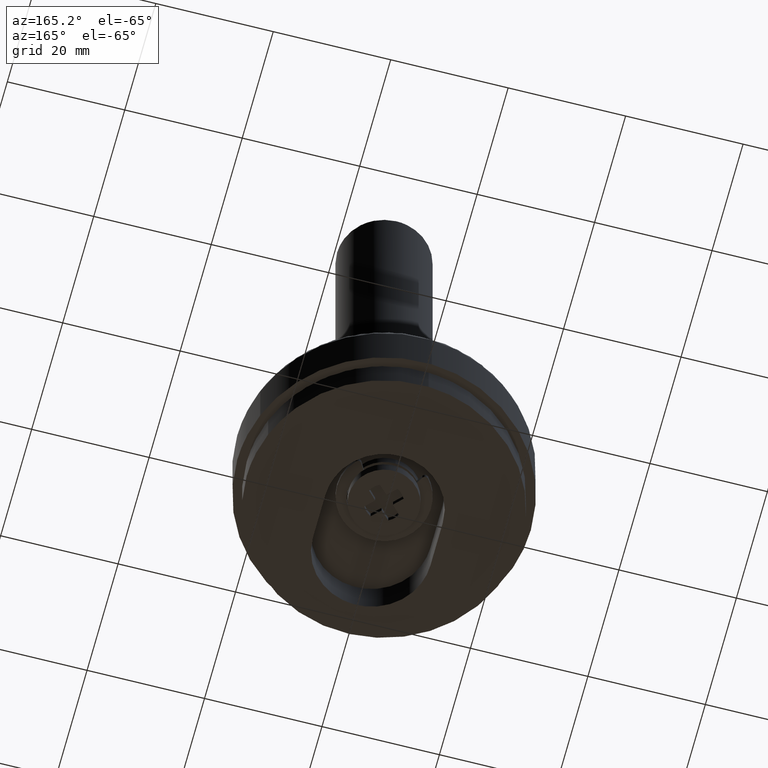
[diagram: clean part render]
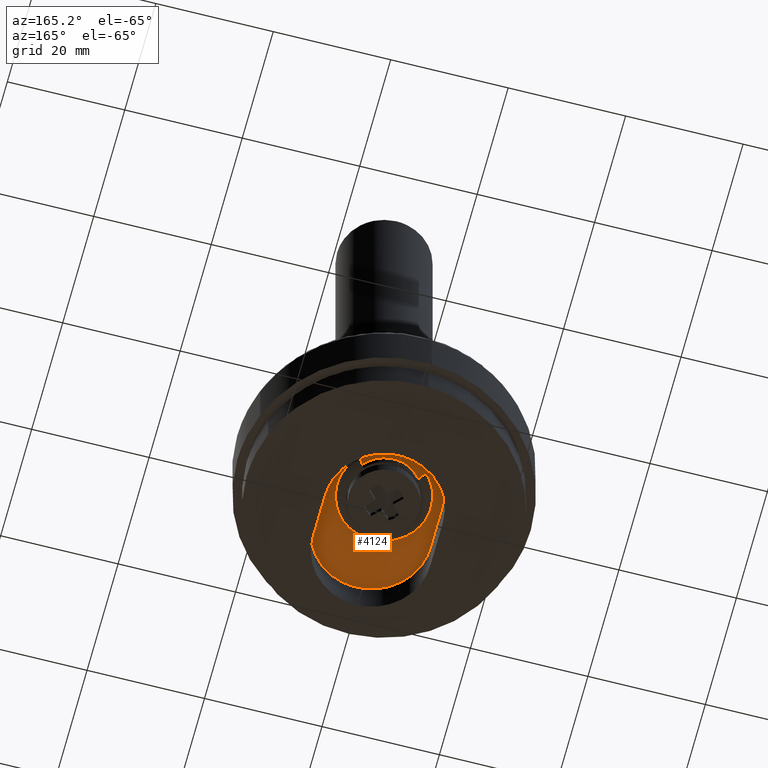
[diagram: same view with one face highlighted and labeled with its STEP entity id]
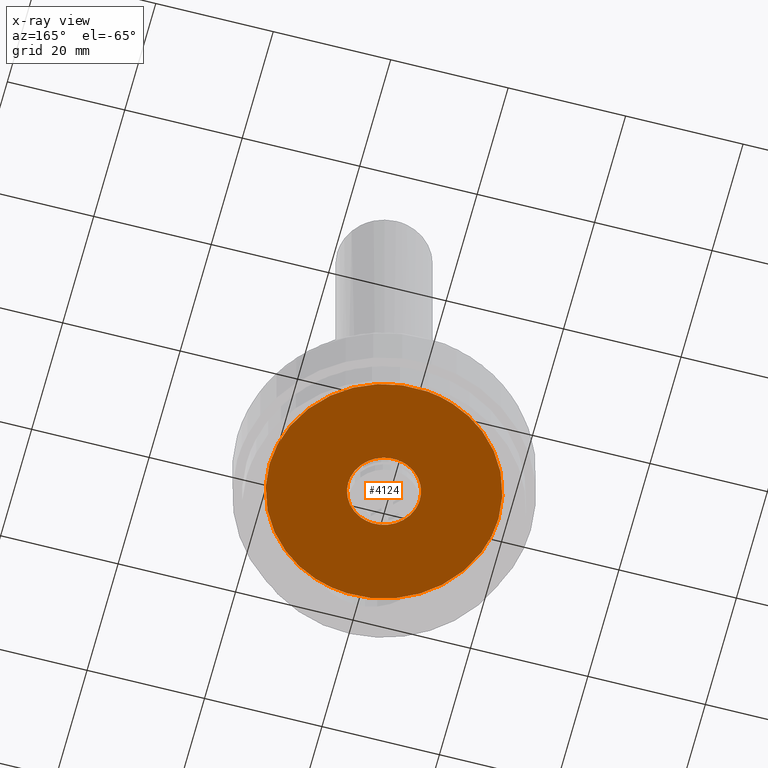
[diagram: x-ray of the same camera — body ghosted, the highlighted face saturated]
A machine part, auxiliary view. The second image highlights one B-rep face of the part: STEP entity #4124.
The next image is the same camera in x-ray: the body ghosted, the highlighted face saturated — about 0% of this face is hidden behind the body in this view.
In plain terms, the highlighted face is a freeform B-spline surface patch.
Its self-contained STEP definition (entity closure, byte-faithful):
#3416=CARTESIAN_POINT('',(-2.301647185523737,19.363688187763952,6.899999999999213));
#3417=VERTEX_POINT('',#3416);
#3418=CARTESIAN_POINT('',(19.500000000000000,0.0,6.900000000000000));
#3419=VERTEX_POINT('',#3418);
#3420=CARTESIAN_POINT('',(-2.301647185523736,19.363688187763941,6.899999999999213));
#3421=CARTESIAN_POINT('',(-1.154860030290596,19.500000000000004,6.900000000000000));
#3422=CARTESIAN_POINT('',(0.0,19.500000000000000,6.900000000000000));
#3423=CARTESIAN_POINT('',(19.500000000000004,19.500000000000004,6.900000000000000));
#3424=CARTESIAN_POINT('',(19.500000000000000,0.0,6.900000000000000));
#3432=(BOUNDED_CURVE()B_SPLINE_CURVE(2,(#3420,#3421,#3422,#3423,#3424),.UNSPECIFIED.,.F.,.U.)B_SPLINE_CURVE_WITH_KNOTS((3,2,3),(0.229562651478887,0.250000000000000,0.500000000000000),.UNSPECIFIED.)CURVE()GEOMETRIC_REPRESENTATION_ITEM()RATIONAL_B_SPLINE_CURVE((0.956027103003421,0.976056156830555,1.0,0.707106781186548,1.0))REPRESENTATION_ITEM(''));
#3433=EDGE_CURVE('',#3417,#3419,#3432,.T.);
#3474=CARTESIAN_POINT('',(1.190421647367187,-19.463630090526760,6.899999999999193));
#3475=VERTEX_POINT('',#3474);
#3481=CARTESIAN_POINT('',(19.500000000000000,0.0,6.900000000000000));
#3482=CARTESIAN_POINT('',(19.500000000000000,-18.343791790915940,6.900000000000000));
#3483=CARTESIAN_POINT('',(1.190421647367187,-19.463630090526760,6.899999999999194));
#3491=(BOUNDED_CURVE()B_SPLINE_CURVE(2,(#3481,#3482,#3483),.UNSPECIFIED.,.F.,.U.)B_SPLINE_CURVE_WITH_KNOTS((3,3),(0.500000000000000,0.739333182748338),.UNSPECIFIED.)CURVE()GEOMETRIC_REPRESENTATION_ITEM()RATIONAL_B_SPLINE_CURVE((1.0,0.719603734943885,0.976072514260782))REPRESENTATION_ITEM(''));
#3492=EDGE_CURVE('',#3419,#3475,#3491,.T.);
#3515=CARTESIAN_POINT('',(-19.500000000000000,0.0,6.900000000000000));
#3516=VERTEX_POINT('',#3515);
#3517=CARTESIAN_POINT('',(-19.500000000000000,0.0,6.900000000000000));
#3518=CARTESIAN_POINT('',(-19.499999999999996,17.319421622064628,6.900000000000000));
#3519=CARTESIAN_POINT('',(-2.301647185523736,19.363688187763941,6.899999999999213));
#3527=(BOUNDED_CURVE()B_SPLINE_CURVE(2,(#3517,#3518,#3519),.UNSPECIFIED.,.F.,.U.)B_SPLINE_CURVE_WITH_KNOTS((3,3),(0.0,0.229562651478887),.UNSPECIFIED.)CURVE()GEOMETRIC_REPRESENTATION_ITEM()RATIONAL_B_SPLINE_CURVE((1.0,0.731050624355992,0.956027103003421))REPRESENTATION_ITEM(''));
#3528=EDGE_CURVE('',#3516,#3417,#3527,.T.);
#3530=CARTESIAN_POINT('',(1.190421647367187,-19.463630090526760,6.899999999999194));
#3531=CARTESIAN_POINT('',(0.595766412670918,-19.500000000000004,6.900000000000000));
#3532=CARTESIAN_POINT('',(0.0,-19.500000000000000,6.900000000000000));
#3533=CARTESIAN_POINT('',(-19.500000000000004,-19.500000000000004,6.900000000000000));
#3534=CARTESIAN_POINT('',(-19.500000000000000,0.0,6.900000000000000));
#3542=(BOUNDED_CURVE()B_SPLINE_CURVE(2,(#3530,#3531,#3532,#3533,#3534),.UNSPECIFIED.,.F.,.U.)B_SPLINE_CURVE_WITH_KNOTS((3,2,3),(0.739333182748338,0.750000000000000,1.0),.UNSPECIFIED.)CURVE()GEOMETRIC_REPRESENTATION_ITEM()RATIONAL_B_SPLINE_CURVE((0.976072514260782,0.987503046242663,1.0,0.707106781186548,1.0))REPRESENTATION_ITEM(''));
#3543=EDGE_CURVE('',#3475,#3516,#3542,.T.);
#3803=CARTESIAN_POINT('',(-0.720008831480611,6.057358110809522,6.900000000000000));
#3804=VERTEX_POINT('',#3803);
#3805=CARTESIAN_POINT('',(6.100000000000001,0.0,6.900000000000000));
#3806=VERTEX_POINT('',#3805);
#3807=CARTESIAN_POINT('',(-0.720008831480611,6.057358110809523,6.900000000000001));
#3808=CARTESIAN_POINT('',(-0.361267129951822,6.100000000000001,6.900000000000000));
#3809=CARTESIAN_POINT('',(0.0,6.100000000000001,6.900000000000000));
#3810=CARTESIAN_POINT('',(6.100000000000001,6.100000000000001,6.900000000000000));
#3811=CARTESIAN_POINT('',(6.100000000000001,0.0,6.900000000000000));
#3819=(BOUNDED_CURVE()B_SPLINE_CURVE(2,(#3807,#3808,#3809,#3810,#3811),.UNSPECIFIED.,.F.,.U.)B_SPLINE_CURVE_WITH_KNOTS((3,2,3),(0.229562473511494,0.250000000000000,0.500000000000000),.UNSPECIFIED.)CURVE()GEOMETRIC_REPRESENTATION_ITEM()RATIONAL_B_SPLINE_CURVE((0.956026754179750,0.976055948328785,1.0,0.707106781186547,1.0))REPRESENTATION_ITEM(''));
#3820=EDGE_CURVE('',#3804,#3806,#3819,.T.);
#3822=CARTESIAN_POINT('',(0.372396091280524,-6.088622270366177,6.900000000000000));
#3823=VERTEX_POINT('',#3822);
#3824=CARTESIAN_POINT('',(6.100000000000001,0.0,6.900000000000000));
#3825=CARTESIAN_POINT('',(6.100000000000001,-5.738307007902087,6.900000000000000));
#3826=CARTESIAN_POINT('',(0.372396091280524,-6.088622270366177,6.900000000000000));
#3834=(BOUNDED_CURVE()B_SPLINE_CURVE(2,(#3824,#3825,#3826),.UNSPECIFIED.,.F.,.U.)B_SPLINE_CURVE_WITH_KNOTS((3,3),(0.500000000000000,0.739332962235286),.UNSPECIFIED.)CURVE()GEOMETRIC_REPRESENTATION_ITEM()RATIONAL_B_SPLINE_CURVE((1.0,0.719603993290995,0.976072041658880))REPRESENTATION_ITEM(''));
#3835=EDGE_CURVE('',#3806,#3823,#3834,.T.);
#3902=CARTESIAN_POINT('',(-6.100000000000001,0.0,6.900000000000000));
#3903=VERTEX_POINT('',#3902);
#3904=CARTESIAN_POINT('',(-6.100000000000001,0.0,6.900000000000000));
#3905=CARTESIAN_POINT('',(-6.100000000000001,5.417864608169345,6.900000000000000));
#3906=CARTESIAN_POINT('',(-0.720008831480611,6.057358110809522,6.900000000000000));
#3914=(BOUNDED_CURVE()B_SPLINE_CURVE(2,(#3904,#3905,#3906),.UNSPECIFIED.,.F.,.U.)B_SPLINE_CURVE_WITH_KNOTS((3,3),(0.0,0.229562473511494),.UNSPECIFIED.)CURVE()GEOMETRIC_REPRESENTATION_ITEM()RATIONAL_B_SPLINE_CURVE((1.0,0.731050832857763,0.956026754179750))REPRESENTATION_ITEM(''));
#3915=EDGE_CURVE('',#3903,#3804,#3914,.T.);
#3949=CARTESIAN_POINT('',(0.372396091280524,-6.088622270366177,6.900000000000000));
#3950=CARTESIAN_POINT('',(0.186371856239619,-6.100000000000001,6.900000000000000));
#3951=CARTESIAN_POINT('',(0.0,-6.100000000000001,6.900000000000000));
#3952=CARTESIAN_POINT('',(-6.100000000000001,-6.100000000000001,6.900000000000000));
#3953=CARTESIAN_POINT('',(-6.100000000000001,0.0,6.900000000000000));
#3961=(BOUNDED_CURVE()B_SPLINE_CURVE(2,(#3949,#3950,#3951,#3952,#3953),.UNSPECIFIED.,.F.,.U.)B_SPLINE_CURVE_WITH_KNOTS((3,2,3),(0.739332962235286,0.750000000000000,1.0),.UNSPECIFIED.)CURVE()GEOMETRIC_REPRESENTATION_ITEM()RATIONAL_B_SPLINE_CURVE((0.976072041658881,0.987502787895553,1.0,0.707106781186547,1.0))REPRESENTATION_ITEM(''));
#3962=EDGE_CURVE('',#3823,#3903,#3961,.T.);
#4107=CARTESIAN_POINT('',(-21.448049924410430,-21.447575677847091,6.900000000000000));
#4108=CARTESIAN_POINT('',(21.448050970471950,-21.447575677847091,6.900000000000000));
#4109=CARTESIAN_POINT('',(-21.448049924410430,21.447695277547059,6.900000000000000));
#4110=CARTESIAN_POINT('',(21.448050970471950,21.447695277547059,6.900000000000000));
#4111=B_SPLINE_SURFACE_WITH_KNOTS('',1,1,((#4107,#4109),(#4108,#4110)),.UNSPECIFIED.,.F.,.F.,.U.,(2,2),(2,2),(0.0,42.896100894882380),(0.0,42.895270955394153),.UNSPECIFIED.);
#4112=ORIENTED_EDGE('',*,*,#3528,.T.);
#4113=ORIENTED_EDGE('',*,*,#3433,.T.);
#4114=ORIENTED_EDGE('',*,*,#3492,.T.);
#4115=ORIENTED_EDGE('',*,*,#3543,.T.);
#4116=EDGE_LOOP('',(#4112,#4113,#4114,#4115));
#4117=FACE_OUTER_BOUND('',#4116,.T.);
#4118=ORIENTED_EDGE('',*,*,#3835,.F.);
#4119=ORIENTED_EDGE('',*,*,#3820,.F.);
#4120=ORIENTED_EDGE('',*,*,#3915,.F.);
#4121=ORIENTED_EDGE('',*,*,#3962,.F.);
#4122=EDGE_LOOP('',(#4118,#4119,#4120,#4121));
#4123=FACE_BOUND('',#4122,.T.);
#4124=ADVANCED_FACE('',(#4117,#4123),#4111,.F.);